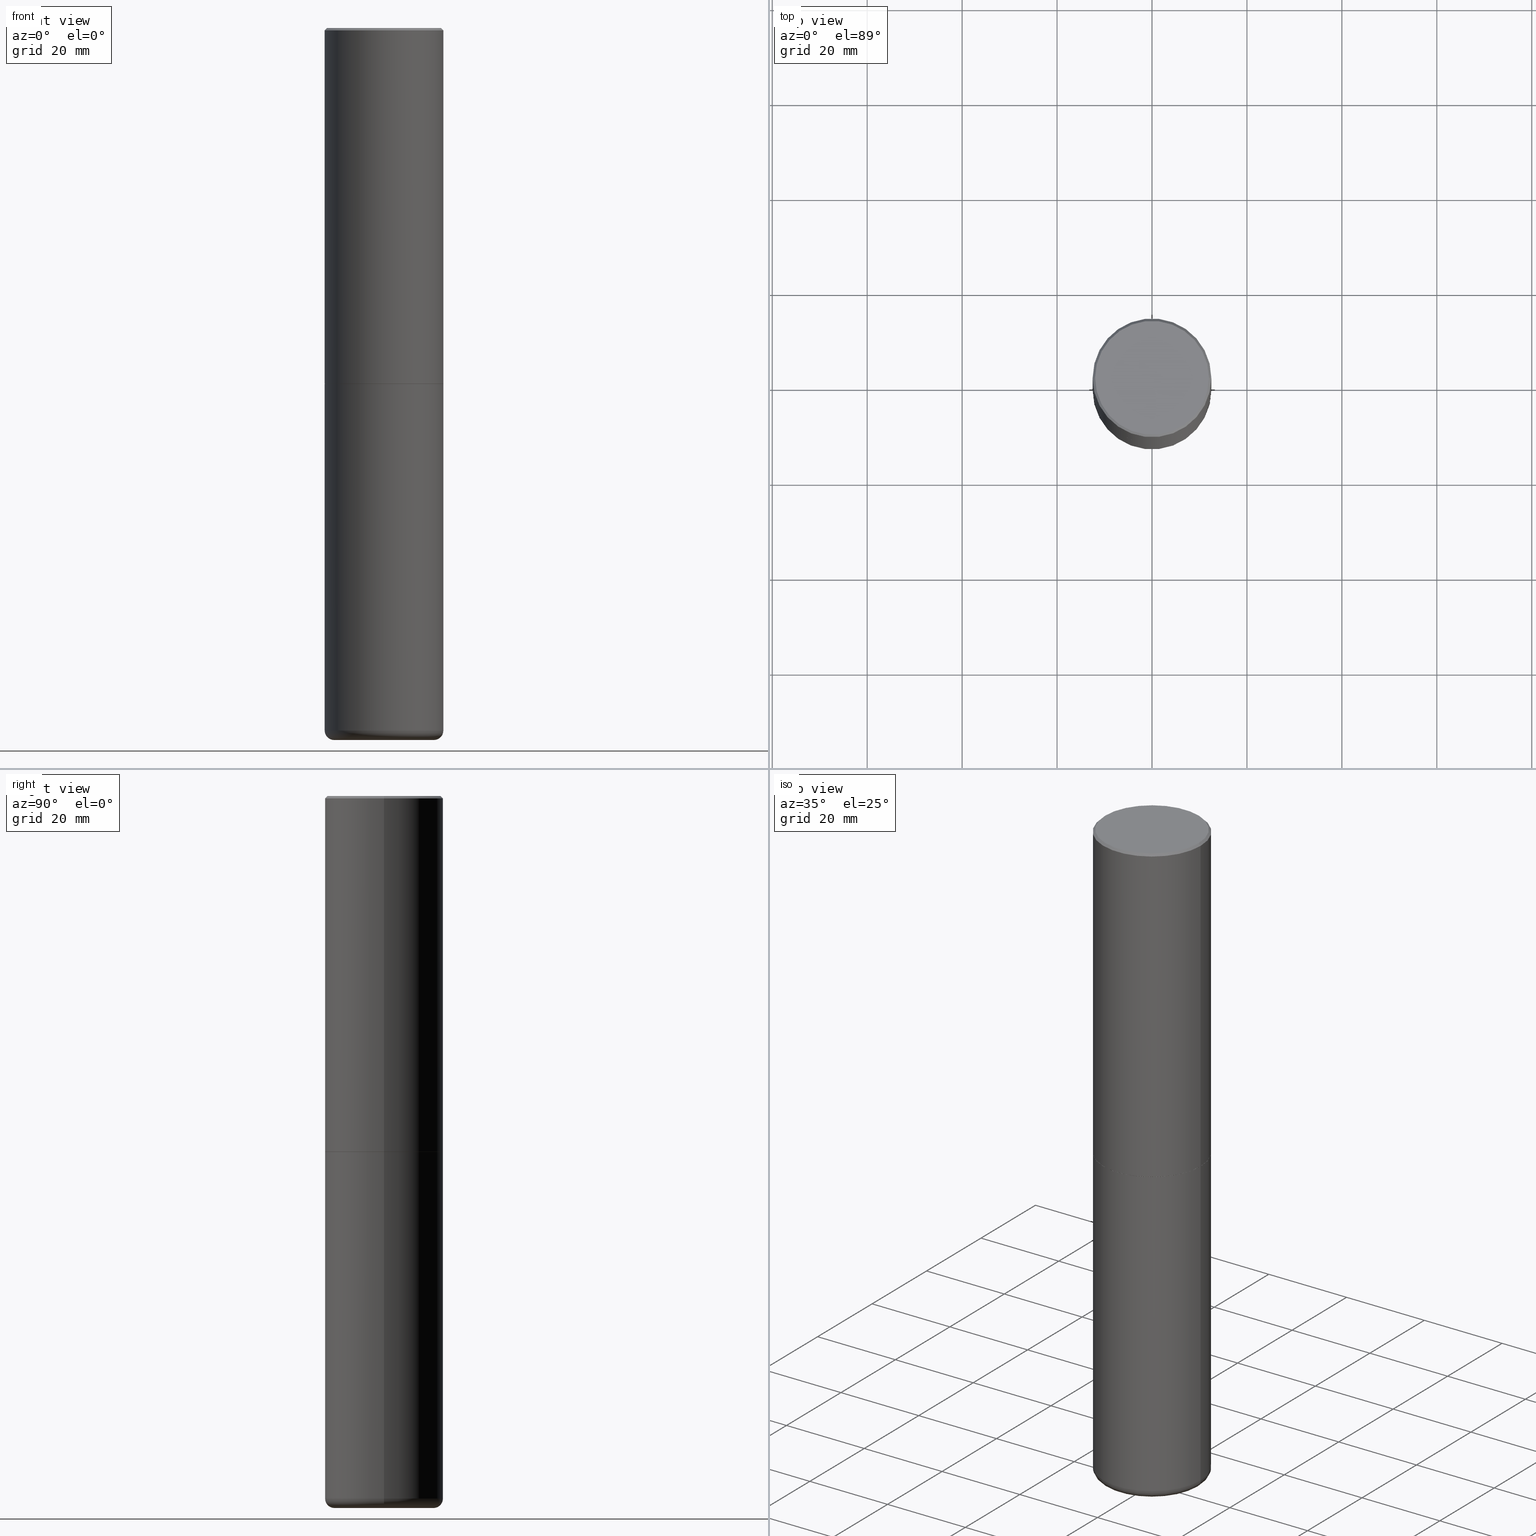
[diagram: canonical four-view strip — front | top / right | iso, engineering-drawing reading convention]
A machine part, canonical four-view strip (front | top / right | iso — engineering-drawing reading convention). The complete STEP part file that produces these views, byte-faithful:
ISO-10303-21;
HEADER;
FILE_DESCRIPTION (( 'STEP AP203' ),
    '1' );
FILE_NAME ('74889.STEP',
    '2024-05-02T19:27:37',
    ( '' ),
    ( '' ),
    'SwSTEP 2.0',
    'SolidWorks 2023',
    '' );
FILE_SCHEMA (( 'CONFIG_CONTROL_DESIGN' ));
ENDSEC;

DATA;
#1 = CARTESIAN_POINT ( 'NONE',  ( 0.000000000000000000, 0.000000000000000000, 0.000000000000000000 ) ) ;
#2 = ORIENTED_EDGE ( 'NONE', *, *, #165, .F. ) ;
#3 = ORIENTED_EDGE ( 'NONE', *, *, #141, .F. ) ;
#4 = AXIS2_PLACEMENT_3D ( 'NONE', #170, #51, #105 ) ;
#5 = DIRECTION ( 'NONE',  ( -2.445468806185136597E-29, 3.491481338843145583E-15, 1.000000000000000000 ) ) ;
#6 = ORIENTED_EDGE ( 'NONE', *, *, #251, .T. ) ;
#7 = DIRECTION ( 'NONE',  ( 2.438088387897960049E-29, -3.491481338843145188E-15, -1.000000000000000000 ) ) ;
#8 = FACE_OUTER_BOUND ( 'NONE', #326, .T. ) ;
#9 = ORIENTED_EDGE ( 'NONE', *, *, #276, .T. ) ;
#10 = ADVANCED_FACE ( 'NONE', ( #60 ), #86, .T. ) ;
#11 = ORIENTED_EDGE ( 'NONE', *, *, #124, .F. ) ;
#12 = PERSON_AND_ORGANIZATION ( #33, #364 ) ;
#13 = FACE_OUTER_BOUND ( 'NONE', #104, .T. ) ;
#14 = CARTESIAN_POINT ( 'NONE',  ( 4.890937612370299433E-31, -6.982962677686328587E-17, -0.02000000000000010797 ) ) ;
#15 = CONICAL_SURFACE ( 'NONE', #246, 0.4921500000000000319, 0.7853981633974452814 ) ;
#16 = CIRCLE ( 'NONE', #411, 0.4921499999999999209 ) ;
#17 = COORDINATED_UNIVERSAL_TIME_OFFSET ( 5, 0, .BEHIND. ) ;
#18 = CARTESIAN_POINT ( 'NONE',  ( 7.220735744022852519E-29, -1.030929694920215502E-14, -2.952700000000000102 ) ) ;
#19 = ORIENTED_EDGE ( 'NONE', *, *, #282, .F. ) ;
#20 = UNCERTAINTY_MEASURE_WITH_UNIT (LENGTH_MEASURE( 1.000000000000000082E-05 ), #38, 'distance_accuracy_value', 'NONE');
#21 = APPROVAL ( #298, 'UNSPECIFIED' ) ;
#22 = CARTESIAN_POINT ( 'NONE',  ( -0.4911499999999999755, -6.814167848168199148E-15, -2.952700000000000102 ) ) ;
#23 = DIRECTION ( 'NONE',  ( -2.445468806185136597E-29, 3.491481338843145583E-15, 1.000000000000000000 ) ) ;
#24 = AXIS2_PLACEMENT_3D ( 'NONE', #212, #154, #183 ) ;
#25 = SECURITY_CLASSIFICATION ( '', '', #171 ) ;
#26 = CARTESIAN_POINT ( 'NONE',  ( 0.4921500000000000319, -3.446223716380123138E-15, -0.02000000000000010797 ) ) ;
#27 = DIRECTION ( 'NONE',  ( -0.7071067811867406405, 7.493145998871051513E-15, 0.7071067811863543939 ) ) ;
#28 = EDGE_CURVE ( 'NONE', #205, #42, #236, .T. ) ;
#29 = LINE ( 'NONE', #64, #175 ) ;
#30 = CIRCLE ( 'NONE', #116, 0.4921500000000000319 ) ;
#31 = TOROIDAL_SURFACE ( 'NONE', #247, 0.4134499999999999287, 0.07870000000000021423 ) ;
#32 = CARTESIAN_POINT ( 'NONE',  ( -0.4921499999999999764, -1.684722739112790494E-14, -5.826799999999999535 ) ) ;
#33 = PERSON ( 'UNSPECIFIED', 'UNSPECIFIED', 'UNSPECIFIED', ('UNSPECIFIED'), ('UNSPECIFIED'), ('UNSPECIFIED') ) ;
#34 = DIRECTION ( 'NONE',  ( 2.438088387897960049E-29, -3.491481338843145188E-15, -1.000000000000000000 ) ) ;
#35 = EDGE_CURVE ( 'NONE', #136, #233, #63, .T. ) ;
#36 = APPLICATION_CONTEXT ( 'configuration controlled 3d designs of mechanical parts and assemblies' ) ;
#37 = ORIENTED_EDGE ( 'NONE', *, *, #394, .T. ) ;
#38 =( CONVERSION_BASED_UNIT ( 'INCH', #70 ) LENGTH_UNIT ( ) NAMED_UNIT ( #128 ) );
#39 = ORIENTED_EDGE ( 'NONE', *, *, #79, .T. ) ;
#40 = CARTESIAN_POINT ( 'NONE',  ( 1.424925763987955342E-28, -2.034416346517123863E-14, -5.826799999999999535 ) ) ;
#41 = LOCAL_TIME ( 15, 27, 37.00000000000000000, #148 ) ;
#42 = VERTEX_POINT ( 'NONE', #193 ) ;
#43 = ORIENTED_EDGE ( 'NONE', *, *, #124, .T. ) ;
#44 = DATE_AND_TIME ( #142, #237 ) ;
#45 = VERTEX_POINT ( 'NONE', #144 ) ;
#46 = PERSON_AND_ORGANIZATION ( #33, #364 ) ;
#47 = AXIS2_PLACEMENT_3D ( 'NONE', #418, #352, #311 ) ;
#48 = DIRECTION ( 'NONE',  ( -1.000000000000000000, 6.982962677686265922E-15, -4.876176775795935793E-29 ) ) ;
#49 = EDGE_LOOP ( 'NONE', ( #198, #43, #268, #138 ) ) ;
#50 = DATE_TIME_ROLE ( 'classification_date' ) ;
#51 = DIRECTION ( 'NONE',  ( -2.445468806185136597E-29, 3.491481338843145583E-15, 1.000000000000000000 ) ) ;
#52 = EDGE_CURVE ( 'NONE', #200, #71, #120, .T. ) ;
#53 = APPROVAL_DATE_TIME ( #336, #218 ) ;
#54 = CARTESIAN_POINT ( 'NONE',  ( -0.4921500000000001984, 3.496936074043334475E-15, -2.420853904668952630E-29 ) ) ;
#55 = APPROVAL_STATUS ( 'not_yet_approved' ) ;
#56 = DIRECTION ( 'NONE',  ( -2.445468806185136597E-29, 3.491481338843145583E-15, 1.000000000000000000 ) ) ;
#57 = VECTOR ( 'NONE', #306, 39.37007874015748143 ) ;
#58 = MANIFOLD_SOLID_BREP ( 'Body-Move/Copy2[2]', #75 ) ;
#59 = ADVANCED_FACE ( 'NONE', ( #409 ), #115, .F. ) ;
#60 = FACE_OUTER_BOUND ( 'NONE', #81, .T. ) ;
#61 = CYLINDRICAL_SURFACE ( 'NONE', #159, 0.4921500000000001984 ) ;
#62 = CARTESIAN_POINT ( 'NONE',  ( 0.4921500000000003094, -1.374247054968661252E-14, -2.951700000000000212 ) ) ;
#63 = CIRCLE ( 'NONE', #4, 0.4911499999999999755 ) ;
#64 = CARTESIAN_POINT ( 'NONE',  ( -0.4911499999999999755, -6.819466302516422338E-15, -2.952700000000000102 ) ) ;
#65 = LINE ( 'NONE', #179, #385 ) ;
#66 = AXIS2_PLACEMENT_3D ( 'NONE', #96, #314, #219 ) ;
#67 = EDGE_CURVE ( 'NONE', #134, #45, #93, .T. ) ;
#68 = CARTESIAN_POINT ( 'NONE',  ( -6.889419334612450925E-45, 9.836264924510951028E-31, 2.817218243466271259E-16 ) ) ;
#69 = ORIENTED_EDGE ( 'NONE', *, *, #245, .T. ) ;
#70 = LENGTH_MEASURE_WITH_UNIT ( LENGTH_MEASURE( 0.02539999999999999897 ), #232 );
#71 = VERTEX_POINT ( 'NONE', #337 ) ;
#72 = FACE_OUTER_BOUND ( 'NONE', #323, .T. ) ;
#73 = ORIENTED_EDGE ( 'NONE', *, *, #190, .T. ) ;
#74 = DIRECTION ( 'NONE',  ( -2.445468806185136877E-29, 3.491481338843145188E-15, 1.000000000000000000 ) ) ;
#75 = CLOSED_SHELL ( 'NONE', ( #273, #10, #302, #286, #318, #307, #402, #59 ) ) ;
#76 = DIRECTION ( 'NONE',  ( -2.445468806185136597E-29, 3.491481338843145583E-15, 1.000000000000000000 ) ) ;
#77 = LOCAL_TIME ( 15, 27, 37.00000000000000000, #234 ) ;
#78 = VERTEX_POINT ( 'NONE', #210 ) ;
#79 = EDGE_CURVE ( 'NONE', #240, #265, #291, .T. ) ;
#80 = PERSON_AND_ORGANIZATION_ROLE ( 'creator' ) ;
#81 = EDGE_LOOP ( 'NONE', ( #353, #260, #287, #132 ) ) ;
#82 = PERSON_AND_ORGANIZATION_ROLE ( 'creator' ) ;
#83 = ADVANCED_FACE ( 'NONE', ( #13 ), #373, .T. ) ;
#84 = DIRECTION ( 'NONE',  ( 1.000000000000000000, -6.982962677686279332E-15, 0.000000000000000000 ) ) ;
#85 = CARTESIAN_POINT ( 'NONE',  ( 1.444171603492632270E-28, -2.061894304653819197E-14, -5.905499999999999972 ) ) ;
#86 = CYLINDRICAL_SURFACE ( 'NONE', #208, 0.4921500000000001984 ) ;
#87 = EDGE_CURVE ( 'NONE', #136, #294, #339, .T. ) ;
#88 = EDGE_LOOP ( 'NONE', ( #11, #6, #288, #192 ) ) ;
#89 = LINE ( 'NONE', #211, #354 ) ;
#90 = CARTESIAN_POINT ( 'NONE',  ( -0.4721499999999997921, 3.331920641658001618E-15, 2.817218243466039531E-16 ) ) ;
#91 = EDGE_CURVE ( 'NONE', #263, #71, #30, .T. ) ;
#92 = DIRECTION ( 'NONE',  ( 1.000000000000000000, -6.982962677686268288E-15, 0.000000000000000000 ) ) ;
#93 = CIRCLE ( 'NONE', #319, 0.07870000000000017260 ) ;
#94 = PRODUCT_DEFINITION_FORMATION_WITH_SPECIFIED_SOURCE ( 'ANY', '', #162, .NOT_KNOWN. ) ;
#95 = CARTESIAN_POINT ( 'NONE',  ( 1.424925763987955342E-28, -2.034416346517123863E-14, -5.826799999999999535 ) ) ;
#96 = CARTESIAN_POINT ( 'NONE',  ( 4.890937612370299433E-31, -6.982962677686328587E-17, -0.02000000000000010797 ) ) ;
#97 = EDGE_CURVE ( 'NONE', #351, #205, #147, .T. ) ;
#98 = MECHANICAL_CONTEXT ( 'NONE', #36, 'mechanical' ) ;
#99 = ORIENTED_EDGE ( 'NONE', *, *, #87, .F. ) ;
#100 = AXIS2_PLACEMENT_3D ( 'NONE', #123, #249, #262 ) ;
#101 = CARTESIAN_POINT ( 'NONE',  ( 7.220735744022852519E-29, -1.030929694920215502E-14, -2.952700000000000102 ) ) ;
#102 = ORIENTED_EDGE ( 'NONE', *, *, #367, .F. ) ;
#103 = CYLINDRICAL_SURFACE ( 'NONE', #209, 0.4921499999999999764 ) ;
#104 = EDGE_LOOP ( 'NONE', ( #19, #167 ) ) ;
#105 = DIRECTION ( 'NONE',  ( 1.000000000000000000, -6.982962677686268288E-15, 0.000000000000000000 ) ) ;
#106 = CC_DESIGN_DATE_AND_TIME_ASSIGNMENT ( #197, #331, ( #173 ) ) ;
#107 = ORIENTED_EDGE ( 'NONE', *, *, #165, .T. ) ;
#108 = CIRCLE ( 'NONE', #168, 0.07870000000000017260 ) ;
#109 = FACE_OUTER_BOUND ( 'NONE', #139, .T. ) ;
#110 = AXIS2_PLACEMENT_3D ( 'NONE', #68, #5, #322 ) ;
#111 = ORIENTED_EDGE ( 'NONE', *, *, #79, .F. ) ;
#112 = APPROVAL_STATUS ( 'not_yet_approved' ) ;
#113 = EDGE_CURVE ( 'NONE', #200, #294, #390, .T. ) ;
#114 = APPROVAL_DATE_TIME ( #44, #130 ) ;
#115 = PLANE ( 'NONE',  #152 ) ;
#116 = AXIS2_PLACEMENT_3D ( 'NONE', #14, #362, #341 ) ;
#117 = CC_DESIGN_APPROVAL ( #218, ( #25 ) ) ;
#118 = COORDINATED_UNIVERSAL_TIME_OFFSET ( 5, 0, .BEHIND. ) ;
#119 = CARTESIAN_POINT ( 'NONE',  ( 0.4911499999999999755, -1.373897906834776478E-14, -2.952700000000000102 ) ) ;
#120 = LINE ( 'NONE', #54, #415 ) ;
#121 = CARTESIAN_POINT ( 'NONE',  ( -0.4921499999999999764, -1.182979413314336550E-14, -2.952700000000000102 ) ) ;
#122 = AXIS2_PLACEMENT_3D ( 'NONE', #1, #131, #256 ) ;
#123 = CARTESIAN_POINT ( 'NONE',  ( 7.220735744022852519E-29, -1.030929694920215502E-14, -2.952700000000000102 ) ) ;
#124 = EDGE_CURVE ( 'NONE', #78, #351, #108, .T. ) ;
#125 = FACE_OUTER_BOUND ( 'NONE', #88, .T. ) ;
#126 = CARTESIAN_POINT ( 'NONE',  ( 0.4921500000000000319, -3.446223716380123138E-15, -0.02000000000000010797 ) ) ;
#127 = TOROIDAL_SURFACE ( 'NONE', #24, 0.4134499999999999287, 0.07870000000000021423 ) ;
#128 = DIMENSIONAL_EXPONENTS ( 1.000000000000000000, 0.000000000000000000, 0.000000000000000000, 0.000000000000000000, 0.000000000000000000, 0.000000000000000000, 0.000000000000000000 ) ;
#129 = DIRECTION ( 'NONE',  ( -1.000000000000000000, 6.982962677686265922E-15, 0.000000000000000000 ) ) ;
#130 = APPROVAL ( #55, 'UNSPECIFIED' ) ;
#131 = DIRECTION ( 'NONE',  ( 0.000000000000000000, 0.000000000000000000, 1.000000000000000000 ) ) ;
#132 = ORIENTED_EDGE ( 'NONE', *, *, #190, .F. ) ;
#133 = DIRECTION ( 'NONE',  ( -2.445468806185136597E-29, 3.491481338843145583E-15, 1.000000000000000000 ) ) ;
#134 = VERTEX_POINT ( 'NONE', #242 ) ;
#135 = DIRECTION ( 'NONE',  ( -2.438088387897960049E-29, 3.491481338843145188E-15, 1.000000000000000000 ) ) ;
#136 = VERTEX_POINT ( 'NONE', #119 ) ;
#137 = PLANE ( 'NONE',  #380 ) ;
#138 = ORIENTED_EDGE ( 'NONE', *, *, #67, .F. ) ;
#139 = EDGE_LOOP ( 'NONE', ( #37, #389, #321, #292 ) ) ;
#140 = CONICAL_SURFACE ( 'NONE', #259, 0.4911499999999999755, 0.7853981633977213939 ) ;
#141 = EDGE_CURVE ( 'NONE', #240, #263, #207, .T. ) ;
#142 = CALENDAR_DATE ( 2024, 2, 5 ) ;
#143 = DIRECTION ( 'NONE',  ( 1.000000000000000000, -6.982962677686265922E-15, 0.000000000000000000 ) ) ;
#144 = CARTESIAN_POINT ( 'NONE',  ( 0.4921499999999999764, -2.378082854699453914E-14, -5.826799999999999535 ) ) ;
#145 = CALENDAR_DATE ( 2024, 2, 5 ) ;
#146 = AXIS2_PLACEMENT_3D ( 'NONE', #386, #383, #310 ) ;
#147 = LINE ( 'NONE', #275, #325 ) ;
#148 = COORDINATED_UNIVERSAL_TIME_OFFSET ( 5, 0, .BEHIND. ) ;
#149 = ADVANCED_FACE ( 'NONE', ( #125 ), #127, .T. ) ;
#150 = CARTESIAN_POINT ( 'NONE',  ( 7.220735744022852519E-29, -1.030929694920215502E-14, -2.952700000000000102 ) ) ;
#151 = DIRECTION ( 'NONE',  ( 0.7071067811865453523, -7.319954787623248157E-15, -0.7071067811865496822 ) ) ;
#152 = AXIS2_PLACEMENT_3D ( 'NONE', #235, #244, #48 ) ;
#153 = CIRCLE ( 'NONE', #221, 0.4921500000000003094 ) ;
#154 = DIRECTION ( 'NONE',  ( -2.445468806185136597E-29, 3.491481338843145583E-15, 1.000000000000000000 ) ) ;
#155 = DIRECTION ( 'NONE',  ( -2.445468806185136877E-29, 3.491481338843145188E-15, 1.000000000000000000 ) ) ;
#156 = EDGE_CURVE ( 'NONE', #42, #205, #220, .T. ) ;
#157 = LINE ( 'NONE', #283, #285 ) ;
#158 = CIRCLE ( 'NONE', #399, 0.4921500000000000319 ) ;
#159 = AXIS2_PLACEMENT_3D ( 'NONE', #177, #23, #412 ) ;
#160 = CARTESIAN_POINT ( 'NONE',  ( 7.218290275216666916E-29, -1.030580546786331359E-14, -2.951700000000000212 ) ) ;
#161 = EDGE_LOOP ( 'NONE', ( #225, #330 ) ) ;
#162 = PRODUCT ( '74889', '74889', '', ( #98 ) ) ;
#163 = DIRECTION ( 'NONE',  ( 1.000000000000000000, -6.982962677686265922E-15, 4.876176775795935793E-29 ) ) ;
#164 = ORIENTED_EDGE ( 'NONE', *, *, #113, .T. ) ;
#165 = EDGE_CURVE ( 'NONE', #233, #200, #29, .T. ) ;
#166 = EDGE_LOOP ( 'NONE', ( #227, #39 ) ) ;
#167 = ORIENTED_EDGE ( 'NONE', *, *, #251, .F. ) ;
#168 = AXIS2_PLACEMENT_3D ( 'NONE', #405, #272, #408 ) ;
#169 = CARTESIAN_POINT ( 'NONE',  ( 7.218290275216666916E-29, -1.030580546786331359E-14, -2.951700000000000212 ) ) ;
#170 = CARTESIAN_POINT ( 'NONE',  ( 7.220735744022852519E-29, -1.030929694920215502E-14, -2.952700000000000102 ) ) ;
#171 = SECURITY_CLASSIFICATION_LEVEL ( 'unclassified' ) ;
#172 = DIRECTION ( 'NONE',  ( -2.445468806185136597E-29, 3.491481338843145583E-15, 1.000000000000000000 ) ) ;
#173 = PRODUCT_DEFINITION ( 'UNKNOWN', '', #94, #379 ) ;
#174 = COORDINATED_UNIVERSAL_TIME_OFFSET ( 5, 0, .BEHIND. ) ;
#175 = VECTOR ( 'NONE', #27, 39.37007874015748143 ) ;
#176 = ORIENTED_EDGE ( 'NONE', *, *, #141, .T. ) ;
#177 = CARTESIAN_POINT ( 'NONE',  ( 0.000000000000000000, 0.000000000000000000, 0.000000000000000000 ) ) ;
#178 = APPLICATION_CONTEXT ( 'configuration controlled 3d designs of mechanical parts and assemblies' ) ;
#179 = CARTESIAN_POINT ( 'NONE',  ( 0.4921499999999999764, -3.436665081823295777E-15, 2.399810400207969603E-29 ) ) ;
#180 = AXIS2_PLACEMENT_3D ( 'NONE', #239, #172, #303 ) ;
#181 = APPROVAL_PERSON_ORGANIZATION ( #199, #218, #202 ) ;
#182 = CC_DESIGN_PERSON_AND_ORGANIZATION_ASSIGNMENT ( #241, #374, ( #94 ) ) ;
#183 = DIRECTION ( 'NONE',  ( 1.000000000000000000, -6.982962677686264344E-15, 4.883557194083111780E-29 ) ) ;
#184 = DIRECTION ( 'NONE',  ( -2.445468806185136597E-29, 3.491481338843145583E-15, 1.000000000000000000 ) ) ;
#185 = AXIS2_PLACEMENT_3D ( 'NONE', #169, #301, #143 ) ;
#186 = LOCAL_TIME ( 15, 27, 37.00000000000000000, #118 ) ;
#187 = FACE_OUTER_BOUND ( 'NONE', #49, .T. ) ;
#188 = EDGE_LOOP ( 'NONE', ( #359, #107, #195, #99 ) ) ;
#189 = DIRECTION ( 'NONE',  ( 1.000000000000000000, -6.982962677686264344E-15, 4.883557194083111780E-29 ) ) ;
#190 = EDGE_CURVE ( 'NONE', #294, #263, #157, .T. ) ;
#191 = ORIENTED_EDGE ( 'NONE', *, *, #28, .T. ) ;
#192 = ORIENTED_EDGE ( 'NONE', *, *, #217, .F. ) ;
#193 = CARTESIAN_POINT ( 'NONE',  ( 0.4921499999999999764, -1.374596203102545079E-14, -2.952700000000000102 ) ) ;
#194 =( NAMED_UNIT ( * ) PLANE_ANGLE_UNIT ( ) SI_UNIT ( $, .RADIAN. ) );
#195 = ORIENTED_EDGE ( 'NONE', *, *, #376, .F. ) ;
#196 = CC_DESIGN_PERSON_AND_ORGANIZATION_ASSIGNMENT ( #46, #82, ( #173 ) ) ;
#197 = DATE_AND_TIME ( #145, #372 ) ;
#198 = ORIENTED_EDGE ( 'NONE', *, *, #282, .T. ) ;
#199 = PERSON_AND_ORGANIZATION ( #33, #364 ) ;
#200 = VERTEX_POINT ( 'NONE', #414 ) ;
#201 = VECTOR ( 'NONE', #151, 39.37007874015748143 ) ;
#202 = APPROVAL_ROLE ( '' ) ;
#203 = APPROVAL_ROLE ( '' ) ;
#204 = DIRECTION ( 'NONE',  ( -1.000000000000000000, 6.982962677686265922E-15, -4.876176775795935793E-29 ) ) ;
#205 = VERTEX_POINT ( 'NONE', #121 ) ;
#206 = PERSON_AND_ORGANIZATION ( #33, #364 ) ;
#207 = LINE ( 'NONE', #26, #201 ) ;
#208 = AXIS2_PLACEMENT_3D ( 'NONE', #397, #309, #375 ) ;
#209 = AXIS2_PLACEMENT_3D ( 'NONE', #226, #133, #391 ) ;
#210 = CARTESIAN_POINT ( 'NONE',  ( -0.4134499999999999287, -1.726421574833298258E-14, -5.905499999999999972 ) ) ;
#211 = CARTESIAN_POINT ( 'NONE',  ( -0.4921500000000000319, 3.366835455046432873E-15, -0.02000000000000010797 ) ) ;
#212 = CARTESIAN_POINT ( 'NONE',  ( 1.424925763987955342E-28, -2.034416346517123863E-14, -5.826799999999999535 ) ) ;
#213 = ORIENTED_EDGE ( 'NONE', *, *, #315, .F. ) ;
#214 = FACE_OUTER_BOUND ( 'NONE', #334, .T. ) ;
#215 = PRODUCT_DEFINITION_SHAPE ( 'NONE', 'NONE',  #173 ) ;
#216 = DIRECTION ( 'NONE',  ( -2.445468806185136597E-29, 3.491481338843145583E-15, 1.000000000000000000 ) ) ;
#217 = EDGE_CURVE ( 'NONE', #351, #45, #299, .T. ) ;
#218 = APPROVAL ( #112, 'UNSPECIFIED' ) ;
#219 = DIRECTION ( 'NONE',  ( -1.000000000000000000, 6.982962677686265922E-15, 0.000000000000000000 ) ) ;
#220 = CIRCLE ( 'NONE', #146, 0.4921499999999999764 ) ;
#221 = AXIS2_PLACEMENT_3D ( 'NONE', #160, #264, #258 ) ;
#222 = ORIENTED_EDGE ( 'NONE', *, *, #113, .F. ) ;
#223 = CC_DESIGN_PERSON_AND_ORGANIZATION_ASSIGNMENT ( #355, #271, ( #162 ) ) ;
#224 = PLANE ( 'NONE',  #335 ) ;
#225 = ORIENTED_EDGE ( 'NONE', *, *, #35, .F. ) ;
#226 = CARTESIAN_POINT ( 'NONE',  ( 0.000000000000000000, 0.000000000000000000, 0.000000000000000000 ) ) ;
#227 = ORIENTED_EDGE ( 'NONE', *, *, #367, .T. ) ;
#228 = CARTESIAN_POINT ( 'NONE',  ( 0.4911499999999999755, -1.373897906834776478E-14, -2.952700000000000102 ) ) ;
#229 = CARTESIAN_POINT ( 'NONE',  ( 0.000000000000000000, 0.000000000000000000, 0.000000000000000000 ) ) ;
#230 = ORIENTED_EDGE ( 'NONE', *, *, #52, .F. ) ;
#231 = AXIS2_PLACEMENT_3D ( 'NONE', #150, #278, #410 ) ;
#232 =( LENGTH_UNIT ( ) NAMED_UNIT ( * ) SI_UNIT ( $, .METRE. ) );
#233 = VERTEX_POINT ( 'NONE', #22 ) ;
#234 = COORDINATED_UNIVERSAL_TIME_OFFSET ( 5, 0, .BEHIND. ) ;
#235 = CARTESIAN_POINT ( 'NONE',  ( 3.297005828269569180E-15, 0.4721499999999997921, -1.507642001961476820E-15 ) ) ;
#236 = CIRCLE ( 'NONE', #312, 0.4921499999999999764 ) ;
#237 = LOCAL_TIME ( 15, 27, 37.00000000000000000, #17 ) ;
#238 = CALENDAR_DATE ( 2024, 2, 5 ) ;
#239 = CARTESIAN_POINT ( 'NONE',  ( -6.889419334612450925E-45, 9.836264924510951028E-31, 2.817218243466271259E-16 ) ) ;
#240 = VERTEX_POINT ( 'NONE', #248 ) ;
#241 = PERSON_AND_ORGANIZATION ( #33, #364 ) ;
#242 = CARTESIAN_POINT ( 'NONE',  ( 0.4134499999999999287, -2.350604896562757633E-14, -5.905499999999999972 ) ) ;
#243 = DATE_AND_TIME ( #308, #77 ) ;
#244 = DIRECTION ( 'NONE',  ( 2.438088387897960049E-29, -3.491481338843145188E-15, -1.000000000000000000 ) ) ;
#245 = EDGE_CURVE ( 'NONE', #71, #263, #158, .T. ) ;
#246 = AXIS2_PLACEMENT_3D ( 'NONE', #284, #317, #129 ) ;
#247 = AXIS2_PLACEMENT_3D ( 'NONE', #40, #76, #189 ) ;
#248 = CARTESIAN_POINT ( 'NONE',  ( 0.4721499999999997921, -3.342703923013974974E-15, 2.817218243466503973E-16 ) ) ;
#249 = DIRECTION ( 'NONE',  ( -2.445468806185136597E-29, 3.491481338843145583E-15, 1.000000000000000000 ) ) ;
#250 = DIRECTION ( 'NONE',  ( -2.445468806185136597E-29, 3.491481338843145583E-15, 1.000000000000000000 ) ) ;
#251 = EDGE_CURVE ( 'NONE', #78, #134, #267, .T. ) ;
#252 = DIRECTION ( 'NONE',  ( 1.000000000000000000, -6.982962677686261977E-15, 0.000000000000000000 ) ) ;
#253 = CONICAL_SURFACE ( 'NONE', #66, 0.4921500000000000319, 0.7853981633974452814 ) ;
#254 = APPROVAL_PERSON_ORGANIZATION ( #206, #21, #274 ) ;
#255 = FACE_OUTER_BOUND ( 'NONE', #365, .T. ) ;
#256 = DIRECTION ( 'NONE',  ( 1.000000000000000000, 0.000000000000000000, 0.000000000000000000 ) ) ;
#257 = ORIENTED_EDGE ( 'NONE', *, *, #91, .T. ) ;
#258 = DIRECTION ( 'NONE',  ( 1.000000000000000000, -6.982962677686265922E-15, 0.000000000000000000 ) ) ;
#259 = AXIS2_PLACEMENT_3D ( 'NONE', #384, #184, #92 ) ;
#260 = ORIENTED_EDGE ( 'NONE', *, *, #52, .T. ) ;
#261 = CC_DESIGN_DATE_AND_TIME_ASSIGNMENT ( #406, #50, ( #25 ) ) ;
#262 = DIRECTION ( 'NONE',  ( 1.000000000000000000, -6.982962677686268288E-15, 0.000000000000000000 ) ) ;
#263 = VERTEX_POINT ( 'NONE', #126 ) ;
#264 = DIRECTION ( 'NONE',  ( -2.445468806185136597E-29, 3.491481338843145583E-15, 1.000000000000000000 ) ) ;
#265 = VERTEX_POINT ( 'NONE', #90 ) ;
#266 = DIRECTION ( 'NONE',  ( 1.000000000000000000, -6.982962677686266711E-15, 0.000000000000000000 ) ) ;
#267 = CIRCLE ( 'NONE', #47, 0.4134499999999999287 ) ;
#268 = ORIENTED_EDGE ( 'NONE', *, *, #394, .F. ) ;
#269 =( GEOMETRIC_REPRESENTATION_CONTEXT ( 3 ) GLOBAL_UNCERTAINTY_ASSIGNED_CONTEXT ( ( #20 ) ) GLOBAL_UNIT_ASSIGNED_CONTEXT ( ( #38, #194, #295 ) ) REPRESENTATION_CONTEXT ( 'NONE', 'WORKASPACE' ) );
#270 = PERSON_AND_ORGANIZATION ( #33, #364 ) ;
#271 = PERSON_AND_ORGANIZATION_ROLE ( 'design_owner' ) ;
#272 = DIRECTION ( 'NONE',  ( 7.105427357601001859E-15, 1.000000000000000000, -3.491481338843145583E-15 ) ) ;
#273 = ADVANCED_FACE ( 'NONE', ( #345 ), #140, .T. ) ;
#274 = APPROVAL_ROLE ( '' ) ;
#275 = CARTESIAN_POINT ( 'NONE',  ( -0.4921499999999999764, 3.496936074043332897E-15, -2.420853904668951509E-29 ) ) ;
#276 = EDGE_CURVE ( 'NONE', #45, #42, #65, .T. ) ;
#277 = DIRECTION ( 'NONE',  ( 1.000000000000000000, -6.982962677686265922E-15, 0.000000000000000000 ) ) ;
#278 = DIRECTION ( 'NONE',  ( -2.445468806185136597E-29, 3.491481338843145583E-15, 1.000000000000000000 ) ) ;
#279 = CIRCLE ( 'NONE', #100, 0.4911499999999999755 ) ;
#280 = DIRECTION ( 'NONE',  ( -0.7071067811865453523, 2.468850131082234184E-15, -0.7071067811865496822 ) ) ;
#281 = DIRECTION ( 'NONE',  ( 1.000000000000000000, -6.982962677686266711E-15, 0.000000000000000000 ) ) ;
#282 = EDGE_CURVE ( 'NONE', #134, #78, #371, .T. ) ;
#283 = CARTESIAN_POINT ( 'NONE',  ( 0.4921500000000001984, -3.436665081823297354E-15, 2.399810400207970443E-29 ) ) ;
#284 = CARTESIAN_POINT ( 'NONE',  ( 4.890937612370299433E-31, -6.982962677686328587E-17, -0.02000000000000010797 ) ) ;
#285 = VECTOR ( 'NONE', #155, 39.37007874015748143 ) ;
#286 = ADVANCED_FACE ( 'NONE', ( #214 ), #15, .T. ) ;
#287 = ORIENTED_EDGE ( 'NONE', *, *, #91, .F. ) ;
#288 = ORIENTED_EDGE ( 'NONE', *, *, #67, .T. ) ;
#289 = PRODUCT_RELATED_PRODUCT_CATEGORY ( 'detail', '', ( #162 ) ) ;
#290 = CYLINDRICAL_SURFACE ( 'NONE', #343, 0.4921499999999999764 ) ;
#291 = CIRCLE ( 'NONE', #180, 0.4721499999999997921 ) ;
#292 = ORIENTED_EDGE ( 'NONE', *, *, #276, .F. ) ;
#293 = CARTESIAN_POINT ( 'NONE',  ( 1.424925763987955342E-28, -2.034416346517123863E-14, -5.826799999999999535 ) ) ;
#294 = VERTEX_POINT ( 'NONE', #62 ) ;
#295 =( NAMED_UNIT ( * ) SI_UNIT ( $, .STERADIAN. ) SOLID_ANGLE_UNIT ( ) );
#296 = CC_DESIGN_PERSON_AND_ORGANIZATION_ASSIGNMENT ( #338, #80, ( #94 ) ) ;
#297 = ORIENTED_EDGE ( 'NONE', *, *, #315, .T. ) ;
#298 = APPROVAL_STATUS ( 'not_yet_approved' ) ;
#299 = CIRCLE ( 'NONE', #342, 0.4921499999999999209 ) ;
#300 = CALENDAR_DATE ( 2024, 2, 5 ) ;
#301 = DIRECTION ( 'NONE',  ( -2.445468806185136597E-29, 3.491481338843145583E-15, 1.000000000000000000 ) ) ;
#302 = ADVANCED_FACE ( 'NONE', ( #255 ), #253, .T. ) ;
#303 = DIRECTION ( 'NONE',  ( 1.000000000000000000, -6.982962677686265922E-15, 4.882029041999364017E-29 ) ) ;
#304 = CC_DESIGN_PERSON_AND_ORGANIZATION_ASSIGNMENT ( #270, #340, ( #25 ) ) ;
#305 = SHAPE_DEFINITION_REPRESENTATION ( #215, #381 ) ;
#306 = DIRECTION ( 'NONE',  ( 0.7071067811867406405, -2.468850131084279700E-15, 0.7071067811863543939 ) ) ;
#307 = ADVANCED_FACE ( 'NONE', ( #348 ), #392, .T. ) ;
#308 = CALENDAR_DATE ( 2024, 2, 5 ) ;
#309 = DIRECTION ( 'NONE',  ( -2.445468806185136597E-29, 3.491481338843145583E-15, 1.000000000000000000 ) ) ;
#310 = DIRECTION ( 'NONE',  ( 1.000000000000000000, -6.982962677686265922E-15, 0.000000000000000000 ) ) ;
#311 = DIRECTION ( 'NONE',  ( 1.000000000000000000, -6.982962677686261977E-15, 0.000000000000000000 ) ) ;
#312 = AXIS2_PLACEMENT_3D ( 'NONE', #18, #56, #277 ) ;
#313 = CC_DESIGN_APPROVAL ( #130, ( #173 ) ) ;
#314 = DIRECTION ( 'NONE',  ( 2.445468806185136597E-29, -3.491481338843145583E-15, -1.000000000000000000 ) ) ;
#315 = EDGE_CURVE ( 'NONE', #265, #71, #89, .T. ) ;
#316 = DIRECTION ( 'NONE',  ( 1.000000000000000000, -6.982962677686265922E-15, 0.000000000000000000 ) ) ;
#317 = DIRECTION ( 'NONE',  ( 2.445468806185136597E-29, -3.491481338843145583E-15, -1.000000000000000000 ) ) ;
#318 = ADVANCED_FACE ( 'NONE', ( #344 ), #61, .T. ) ;
#319 = AXIS2_PLACEMENT_3D ( 'NONE', #370, #377, #84 ) ;
#320 = APPLICATION_PROTOCOL_DEFINITION ( 'international standard', 'config_control_design', 1994, #36 ) ;
#321 = ORIENTED_EDGE ( 'NONE', *, *, #156, .F. ) ;
#322 = DIRECTION ( 'NONE',  ( 1.000000000000000000, -6.982962677686265922E-15, 4.882029041999364017E-29 ) ) ;
#323 = EDGE_LOOP ( 'NONE', ( #396, #361, #9, #393 ) ) ;
#324 = FACE_OUTER_BOUND ( 'NONE', #161, .T. ) ;
#325 = VECTOR ( 'NONE', #74, 39.37007874015748143 ) ;
#326 = EDGE_LOOP ( 'NONE', ( #332, #191 ) ) ;
#327 = DIRECTION ( 'NONE',  ( -2.445468806185136877E-29, 3.491481338843145188E-15, 1.000000000000000000 ) ) ;
#328 = EDGE_CURVE ( 'NONE', #233, #136, #279, .T. ) ;
#329 = MANIFOLD_SOLID_BREP ( 'Body-Move/Copy2[1]', #346 ) ;
#330 = ORIENTED_EDGE ( 'NONE', *, *, #328, .F. ) ;
#331 = DATE_TIME_ROLE ( 'creation_date' ) ;
#332 = ORIENTED_EDGE ( 'NONE', *, *, #156, .T. ) ;
#333 = ADVANCED_FACE ( 'NONE', ( #72 ), #290, .T. ) ;
#334 = EDGE_LOOP ( 'NONE', ( #3, #102, #297, #69 ) ) ;
#335 = AXIS2_PLACEMENT_3D ( 'NONE', #101, #34, #363 ) ;
#336 = DATE_AND_TIME ( #300, #41 ) ;
#337 = CARTESIAN_POINT ( 'NONE',  ( -0.4921500000000000319, 3.366835455046432873E-15, -0.02000000000000010797 ) ) ;
#338 = PERSON_AND_ORGANIZATION ( #33, #364 ) ;
#339 = LINE ( 'NONE', #228, #57 ) ;
#340 = PERSON_AND_ORGANIZATION_ROLE ( 'classification_officer' ) ;
#341 = DIRECTION ( 'NONE',  ( 1.000000000000000000, -6.982962677686265922E-15, 0.000000000000000000 ) ) ;
#342 = AXIS2_PLACEMENT_3D ( 'NONE', #95, #250, #281 ) ;
#343 = AXIS2_PLACEMENT_3D ( 'NONE', #229, #360, #163 ) ;
#344 = FACE_OUTER_BOUND ( 'NONE', #403, .T. ) ;
#345 = FACE_OUTER_BOUND ( 'NONE', #188, .T. ) ;
#346 = CLOSED_SHELL ( 'NONE', ( #407, #417, #350, #333, #149, #83 ) ) ;
#347 = CC_DESIGN_SECURITY_CLASSIFICATION ( #25, ( #94 ) ) ;
#348 = FACE_OUTER_BOUND ( 'NONE', #398, .T. ) ;
#349 = DIRECTION ( 'NONE',  ( -2.445468806185136597E-29, 3.491481338843145583E-15, 1.000000000000000000 ) ) ;
#350 = ADVANCED_FACE ( 'NONE', ( #8 ), #224, .F. ) ;
#351 = VERTEX_POINT ( 'NONE', #32 ) ;
#352 = DIRECTION ( 'NONE',  ( -2.445468806185136597E-29, 3.491481338843145583E-15, 1.000000000000000000 ) ) ;
#353 = ORIENTED_EDGE ( 'NONE', *, *, #376, .T. ) ;
#354 = VECTOR ( 'NONE', #280, 39.37007874015748143 ) ;
#355 = PERSON_AND_ORGANIZATION ( #33, #364 ) ;
#356 = APPROVAL_PERSON_ORGANIZATION ( #12, #130, #203 ) ;
#357 = ORIENTED_EDGE ( 'NONE', *, *, #87, .T. ) ;
#358 = CARTESIAN_POINT ( 'NONE',  ( 7.220735744022852519E-29, -1.030929694920215502E-14, -2.952700000000000102 ) ) ;
#359 = ORIENTED_EDGE ( 'NONE', *, *, #35, .T. ) ;
#360 = DIRECTION ( 'NONE',  ( -2.445468806185136597E-29, 3.491481338843145583E-15, 1.000000000000000000 ) ) ;
#361 = ORIENTED_EDGE ( 'NONE', *, *, #217, .T. ) ;
#362 = DIRECTION ( 'NONE',  ( -2.445468806185136597E-29, 3.491481338843145583E-15, 1.000000000000000000 ) ) ;
#363 = DIRECTION ( 'NONE',  ( -1.000000000000000000, 6.982962677686265922E-15, -4.876176775795935793E-29 ) ) ;
#364 = ORGANIZATION ( 'UNSPECIFIED', 'UNSPECIFIED', '' ) ;
#365 = EDGE_LOOP ( 'NONE', ( #111, #176, #257, #213 ) ) ;
#366 = ORIENTED_EDGE ( 'NONE', *, *, #328, .T. ) ;
#367 = EDGE_CURVE ( 'NONE', #265, #240, #401, .T. ) ;
#368 = ORIENTED_EDGE ( 'NONE', *, *, #245, .F. ) ;
#369 = APPROVAL_DATE_TIME ( #243, #21 ) ;
#370 = CARTESIAN_POINT ( 'NONE',  ( 0.4134499999999999287, -2.323126938426062930E-14, -5.826799999999999535 ) ) ;
#371 = CIRCLE ( 'NONE', #378, 0.4134499999999999287 ) ;
#372 = LOCAL_TIME ( 15, 27, 37.00000000000000000, #174 ) ;
#373 = PLANE ( 'NONE',  #400 ) ;
#374 = PERSON_AND_ORGANIZATION_ROLE ( 'design_supplier' ) ;
#375 = DIRECTION ( 'NONE',  ( 1.000000000000000000, -6.982962677686266711E-15, 4.876176775795935232E-29 ) ) ;
#376 = EDGE_CURVE ( 'NONE', #294, #200, #153, .T. ) ;
#377 = DIRECTION ( 'NONE',  ( -6.982962677686266711E-15, -1.000000000000000000, 3.491481338843145583E-15 ) ) ;
#378 = AXIS2_PLACEMENT_3D ( 'NONE', #387, #216, #252 ) ;
#379 = DESIGN_CONTEXT ( 'detailed design', #178, 'design' ) ;
#380 = AXIS2_PLACEMENT_3D ( 'NONE', #358, #135, #395 ) ;
#381 = ADVANCED_BREP_SHAPE_REPRESENTATION ( '74889', ( #329, #58, #122 ), #269 ) ;
#382 = DIRECTION ( 'NONE',  ( -2.445468806185136877E-29, 3.491481338843145188E-15, 1.000000000000000000 ) ) ;
#383 = DIRECTION ( 'NONE',  ( -2.445468806185136597E-29, 3.491481338843145583E-15, 1.000000000000000000 ) ) ;
#384 = CARTESIAN_POINT ( 'NONE',  ( 7.220735744022852519E-29, -1.030929694920215502E-14, -2.952700000000000102 ) ) ;
#385 = VECTOR ( 'NONE', #382, 39.37007874015748143 ) ;
#386 = CARTESIAN_POINT ( 'NONE',  ( 7.220735744022852519E-29, -1.030929694920215502E-14, -2.952700000000000102 ) ) ;
#387 = CARTESIAN_POINT ( 'NONE',  ( 1.444171603492632270E-28, -2.061894304653819197E-14, -5.905499999999999972 ) ) ;
#388 = DIRECTION ( 'NONE',  ( -2.445468806185136597E-29, 3.491481338843145583E-15, 1.000000000000000000 ) ) ;
#389 = ORIENTED_EDGE ( 'NONE', *, *, #97, .T. ) ;
#390 = CIRCLE ( 'NONE', #185, 0.4921500000000003094 ) ;
#391 = DIRECTION ( 'NONE',  ( 1.000000000000000000, -6.982962677686265922E-15, 4.876176775795935793E-29 ) ) ;
#392 = CONICAL_SURFACE ( 'NONE', #231, 0.4911499999999999755, 0.7853981633977213939 ) ;
#393 = ORIENTED_EDGE ( 'NONE', *, *, #28, .F. ) ;
#394 = EDGE_CURVE ( 'NONE', #45, #351, #16, .T. ) ;
#395 = DIRECTION ( 'NONE',  ( 1.000000000000000000, -6.982962677686265922E-15, 4.876176775795935793E-29 ) ) ;
#396 = ORIENTED_EDGE ( 'NONE', *, *, #97, .F. ) ;
#397 = CARTESIAN_POINT ( 'NONE',  ( 0.000000000000000000, 0.000000000000000000, 0.000000000000000000 ) ) ;
#398 = EDGE_LOOP ( 'NONE', ( #2, #366, #357, #222 ) ) ;
#399 = AXIS2_PLACEMENT_3D ( 'NONE', #413, #349, #316 ) ;
#400 = AXIS2_PLACEMENT_3D ( 'NONE', #85, #7, #204 ) ;
#401 = CIRCLE ( 'NONE', #110, 0.4721499999999997921 ) ;
#402 = ADVANCED_FACE ( 'NONE', ( #324 ), #137, .F. ) ;
#403 = EDGE_LOOP ( 'NONE', ( #230, #164, #73, #368 ) ) ;
#404 = APPLICATION_PROTOCOL_DEFINITION ( 'international standard', 'config_control_design', 1994, #178 ) ;
#405 = CARTESIAN_POINT ( 'NONE',  ( -0.4134499999999999287, -1.740642452417110689E-14, -5.826799999999999535 ) ) ;
#406 = DATE_AND_TIME ( #238, #186 ) ;
#407 = ADVANCED_FACE ( 'NONE', ( #109 ), #103, .T. ) ;
#408 = DIRECTION ( 'NONE',  ( -1.000000000000000000, 7.105427357601001859E-15, 0.000000000000000000 ) ) ;
#409 = FACE_OUTER_BOUND ( 'NONE', #166, .T. ) ;
#410 = DIRECTION ( 'NONE',  ( 1.000000000000000000, -6.982962677686268288E-15, 0.000000000000000000 ) ) ;
#411 = AXIS2_PLACEMENT_3D ( 'NONE', #293, #388, #266 ) ;
#412 = DIRECTION ( 'NONE',  ( 1.000000000000000000, -6.982962677686266711E-15, 4.876176775795935232E-29 ) ) ;
#413 = CARTESIAN_POINT ( 'NONE',  ( 4.890937612370299433E-31, -6.982962677686328587E-17, -0.02000000000000010797 ) ) ;
#414 = CARTESIAN_POINT ( 'NONE',  ( -0.4921500000000003094, -1.690881473276752982E-15, -2.951700000000000212 ) ) ;
#415 = VECTOR ( 'NONE', #327, 39.37007874015748143 ) ;
#416 = CC_DESIGN_APPROVAL ( #21, ( #94 ) ) ;
#417 = ADVANCED_FACE ( 'NONE', ( #187 ), #31, .T. ) ;
#418 = CARTESIAN_POINT ( 'NONE',  ( 1.444171603492632270E-28, -2.061894304653819197E-14, -5.905499999999999972 ) ) ;
ENDSEC;
END-ISO-10303-21;
